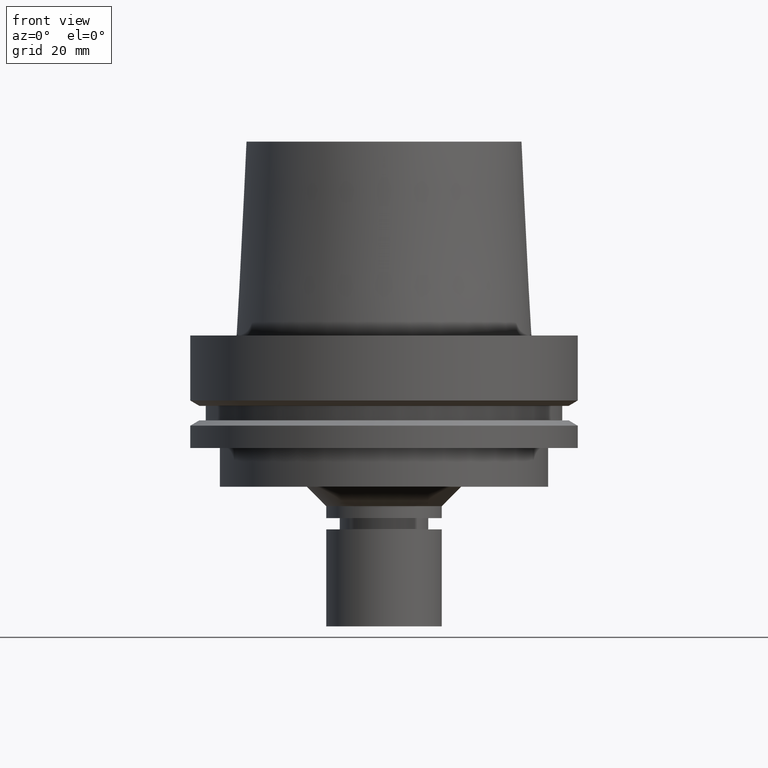
[diagram: clean part render]
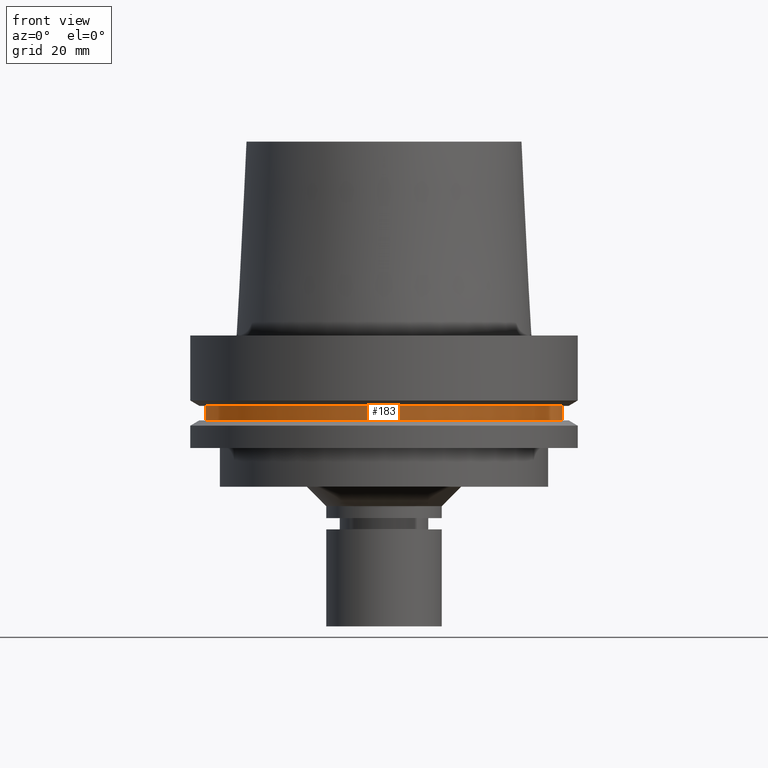
[diagram: same view with one face highlighted and labeled with its STEP entity id]
A machine part, front view. The second image highlights one B-rep face of the part: STEP entity #183.
In plain terms, the highlighted cylindrical surface (bore or boss wall) has radius 46 mm, axis along (0, 0, -1).
Its self-contained STEP definition (entity closure, byte-faithful):
#108=EDGE_CURVE('Unnamed[1]',#264,#264,#265,.T.);
#160=EDGE_CURVE('Unnamed[1]',#343,#343,#344,.T.);
#183=ADVANCED_FACE('Unnamed[1]',(#377,#378),#379,.T.);
#264=VERTEX_POINT('',#473);
#265=CIRCLE('',#474,46.0);
#343=VERTEX_POINT('',#572);
#344=CIRCLE('',#573,46.0);
#377=FACE_BOUND('',#615,.T.);
#378=FACE_BOUND('',#616,.T.);
#379=CYLINDRICAL_SURFACE('',#617,46.0);
#473=CARTESIAN_POINT('',(1.33945743656742E-015,46.0,-21.875));
#474=AXIS2_PLACEMENT_3D('',#701,#702,#703);
#572=CARTESIAN_POINT('',(1.10983616172729E-015,46.0,-18.125));
#573=AXIS2_PLACEMENT_3D('',#787,#788,#789);
#615=EDGE_LOOP('',(#825));
#616=EDGE_LOOP('',(#826));
#617=AXIS2_PLACEMENT_3D('',#827,#828,#829);
#701=CARTESIAN_POINT('',(1.33945743656742E-015,2.67891487313484E-015,-21.875));
#702=DIRECTION('',(6.12323399573677E-017,1.22464679914735E-016,-1.0));
#703=DIRECTION('',(-1.23259516440783E-032,1.0,1.22464679914735E-016));
#787=CARTESIAN_POINT('',(1.10983616172729E-015,2.21967232345458E-015,-18.125));
#788=DIRECTION('',(6.12323399573677E-017,1.22464679914735E-016,-1.0));
#789=DIRECTION('',(-1.23259516440783E-032,1.0,1.22464679914735E-016));
#825=ORIENTED_EDGE('',*,*,#108,.F.);
#826=ORIENTED_EDGE('',*,*,#160,.T.);
#827=CARTESIAN_POINT('',(1.22464679914735E-015,2.44929359829471E-015,-20.0));
#828=DIRECTION('',(6.12323399573677E-017,1.22464679914735E-016,-1.0));
#829=DIRECTION('',(-1.23259516440783E-032,1.0,1.22464679914735E-016));